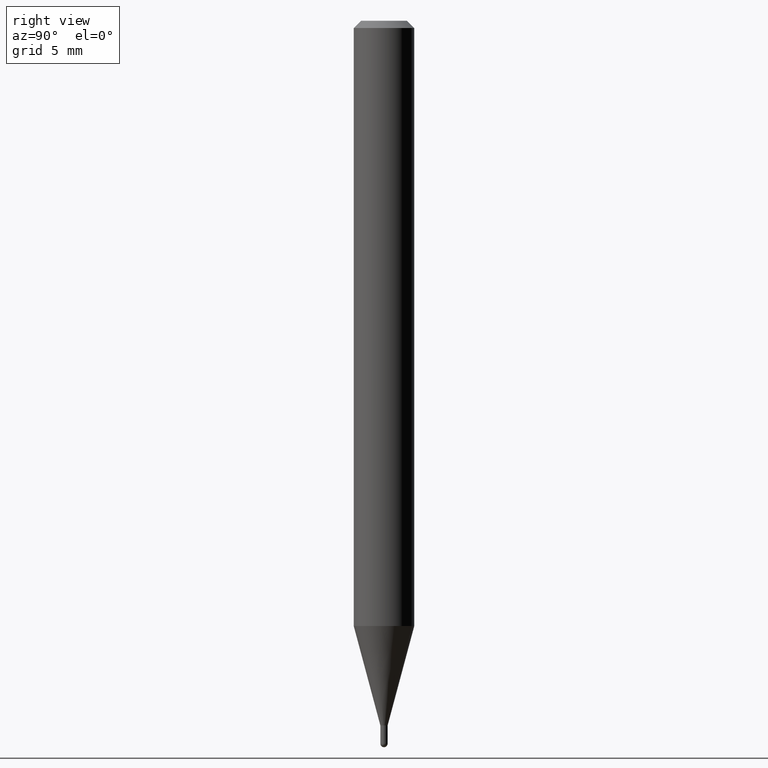
[diagram: clean part render]
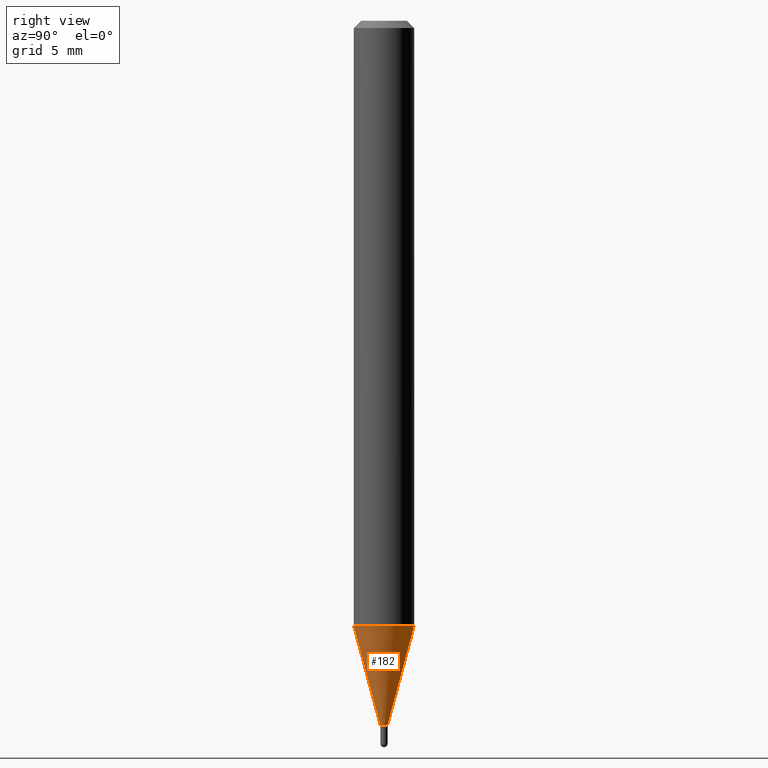
[diagram: same view with one face highlighted and labeled with its STEP entity id]
A machine part, right view. The second image highlights one B-rep face of the part: STEP entity #182.
In plain terms, the highlighted conical surface has half-angle 15 deg.
Its self-contained STEP definition (entity closure, byte-faithful):
#18 = CARTESIAN_POINT ( 'NONE',  ( -5.237222008261278225E-17, -0.007500000000005276751, -1.455000000000000293 ) ) ;
#33 = VERTEX_POINT ( 'NONE', #217 ) ;
#42 = EDGE_CURVE ( 'NONE', #152, #33, #384, .T. ) ;
#47 = VECTOR ( 'NONE', #416, 39.37007874015748143 ) ;
#51 = EDGE_LOOP ( 'NONE', ( #136, #322, #324, #385 ) ) ;
#66 = CARTESIAN_POINT ( 'NONE',  ( 3.558137459837940521E-29, -5.080133492462539105E-15, -1.455000000000000293 ) ) ;
#77 = EDGE_CURVE ( 'NONE', #309, #152, #457, .T. ) ;
#79 = CIRCLE ( 'NONE', #466, 0.06250000000000000000 ) ;
#124 = DIRECTION ( 'NONE',  ( -6.982962677686265922E-15, -1.000000000000000000, 0.000000000000000000 ) ) ;
#136 = ORIENTED_EDGE ( 'NONE', *, *, #77, .T. ) ;
#143 = EDGE_CURVE ( 'NONE', #319, #33, #79, .T. ) ;
#150 = FACE_OUTER_BOUND ( 'NONE', #51, .T. ) ;
#152 = VERTEX_POINT ( 'NONE', #239 ) ;
#164 = DIRECTION ( 'NONE',  ( -2.445455298857690546E-29, 3.491500682104837791E-15, 1.000000000000000000 ) ) ;
#182 = ADVANCED_FACE ( 'NONE', ( #150 ), #508, .T. ) ;
#196 = AXIS2_PLACEMENT_3D ( 'NONE', #66, #206, #124 ) ;
#200 = CARTESIAN_POINT ( 'NONE',  ( 3.056176471574309207E-29, -4.363458305747349090E-15, -1.249737205583719257 ) ) ;
#206 = DIRECTION ( 'NONE',  ( -2.445455298857690546E-29, 3.491500682104837791E-15, 1.000000000000000000 ) ) ;
#207 = LINE ( 'NONE', #402, #477 ) ;
#217 = CARTESIAN_POINT ( 'NONE',  ( 4.440892098500929873E-16, 0.06249999999999562850, -1.249737205583719479 ) ) ;
#230 = CARTESIAN_POINT ( 'NONE',  ( -4.364351673553611504E-16, -0.06250000000000435763, -1.249737205583719035 ) ) ;
#239 = CARTESIAN_POINT ( 'NONE',  ( 2.486899575160690097E-16, 0.007499999999995116476, -1.455000000000000293 ) ) ;
#258 = CARTESIAN_POINT ( 'NONE',  ( 5.329070518204448366E-17, 0.007499999999995115608, -1.455000000000000293 ) ) ;
#278 = DIRECTION ( 'NONE',  ( -6.982962677686265922E-15, -1.000000000000000000, 4.370956789862821150E-15 ) ) ;
#282 = DIRECTION ( 'NONE',  ( -2.445455298857690546E-29, 3.491500682104837791E-15, 1.000000000000000000 ) ) ;
#291 = DIRECTION ( 'NONE',  ( -1.807323732225378260E-15, -0.2588190451025250693, 0.9659258262890670910 ) ) ;
#309 = VERTEX_POINT ( 'NONE', #18 ) ;
#319 = VERTEX_POINT ( 'NONE', #230 ) ;
#322 = ORIENTED_EDGE ( 'NONE', *, *, #42, .T. ) ;
#324 = ORIENTED_EDGE ( 'NONE', *, *, #143, .F. ) ;
#384 = LINE ( 'NONE', #258, #47 ) ;
#385 = ORIENTED_EDGE ( 'NONE', *, *, #433, .F. ) ;
#402 = CARTESIAN_POINT ( 'NONE',  ( -5.237222008261278225E-17, -0.007500000000005276751, -1.455000000000000293 ) ) ;
#416 = DIRECTION ( 'NONE',  ( 1.839019923739649225E-15, 0.2588190451025318417, 0.9659258262890653146 ) ) ;
#433 = EDGE_CURVE ( 'NONE', #309, #319, #207, .T. ) ;
#445 = CARTESIAN_POINT ( 'NONE',  ( 3.558137459837940521E-29, -5.080133492462539105E-15, -1.455000000000000293 ) ) ;
#457 = CIRCLE ( 'NONE', #196, 0.007500000000000196614 ) ;
#461 = DIRECTION ( 'NONE',  ( -6.982962677686265922E-15, -1.000000000000000000, 0.000000000000000000 ) ) ;
#466 = AXIS2_PLACEMENT_3D ( 'NONE', #200, #164, #278 ) ;
#477 = VECTOR ( 'NONE', #291, 39.37007874015748854 ) ;
#487 = AXIS2_PLACEMENT_3D ( 'NONE', #445, #282, #461 ) ;
#508 = CONICAL_SURFACE ( 'NONE', #487, 0.007500000000000196614, 0.2617993877991574014 ) ;